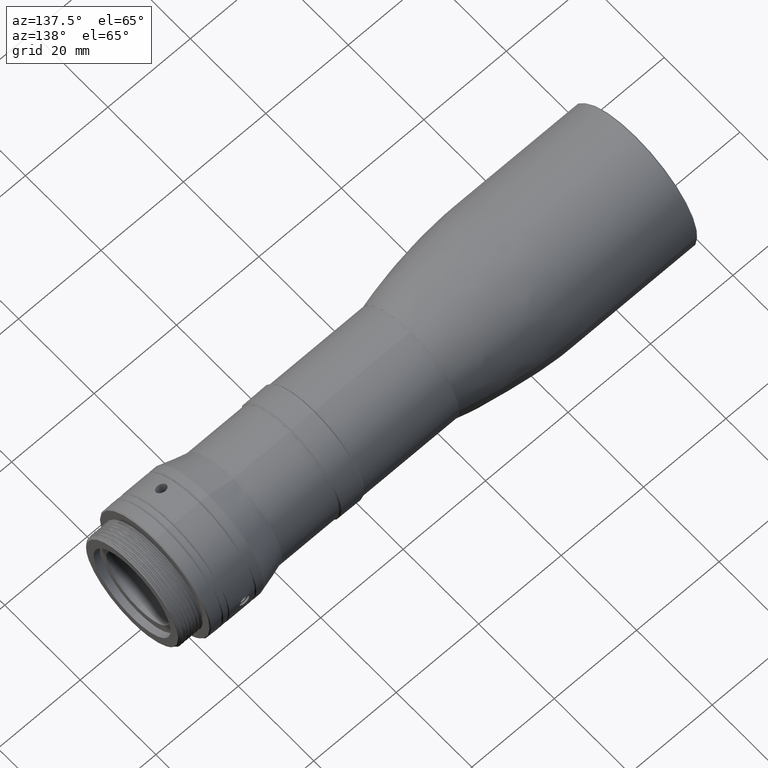
[diagram: clean part render]
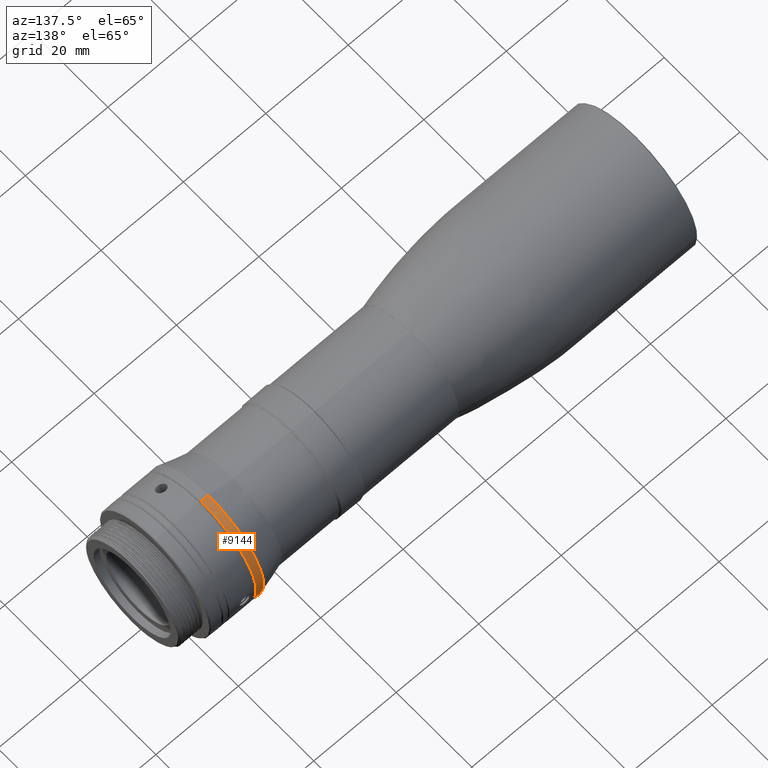
[diagram: same view with one face highlighted and labeled with its STEP entity id]
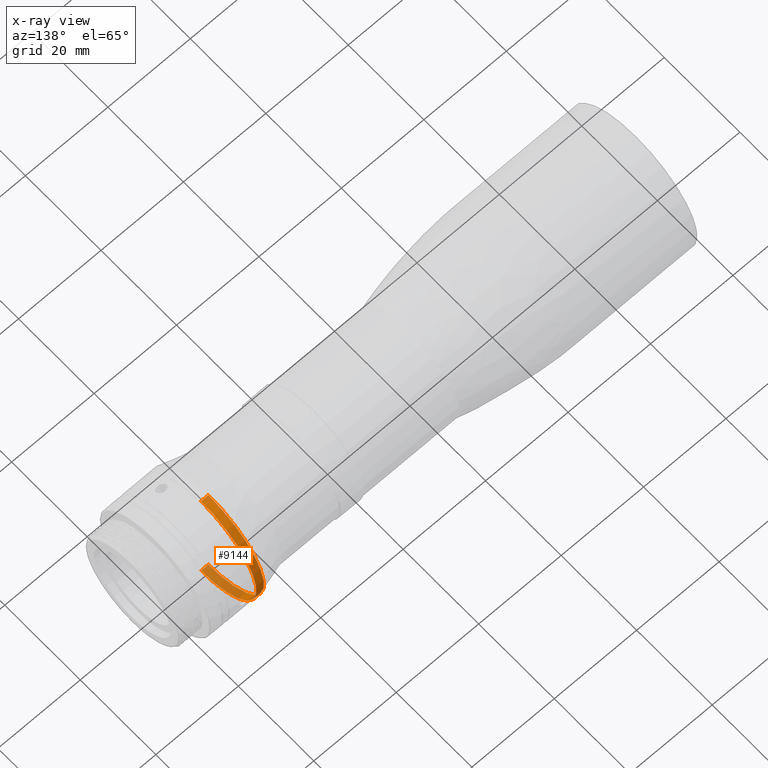
[diagram: x-ray of the same camera — body ghosted, the highlighted face saturated]
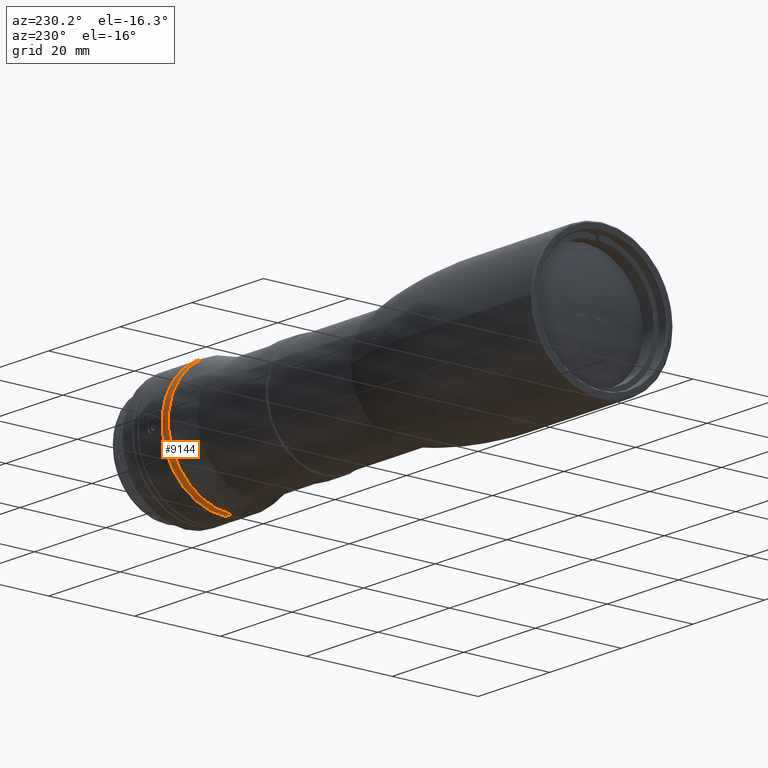
[diagram: same view with one face highlighted and labeled with its STEP entity id]
A machine part, auxiliary view. The second image highlights one B-rep face of the part: STEP entity #9144.
The next image is the same camera in x-ray: the body ghosted, the highlighted face saturated — about 28% of this face is hidden behind the body in this view.
A second angle (auxiliary view) of the same face is appended — the face is thin or edge-on in the first view.
In plain terms, the highlighted cylindrical surface (partial cylindrical patch) has radius 14.7 mm, axis along (1, -0, 0).
Its self-contained STEP definition (entity closure, byte-faithful):
#1486 = CIRCLE ( 'NONE', #12425, 14.69999999999999751 ) ;
#1654 = AXIS2_PLACEMENT_3D ( 'NONE', #10778, #10871, #11044 ) ;
#2222 = ORIENTED_EDGE ( 'NONE', *, *, #3312, .T. ) ;
#2542 = CIRCLE ( 'NONE', #1654, 14.69999999999999929 ) ;
#2702 = ORIENTED_EDGE ( 'NONE', *, *, #4090, .F. ) ;
#2806 = DIRECTION ( 'NONE',  ( 1.000000000000000000, -0.000000000000000000, 0.000000000000000000 ) ) ;
#3312 = EDGE_CURVE ( 'NONE', #17766, #17883, #1486, .T. ) ;
#4090 = EDGE_CURVE ( 'NONE', #17766, #6686, #14295, .T. ) ;
#4427 = DIRECTION ( 'NONE',  ( 1.000000000000000000, -0.000000000000000000, 0.000000000000000000 ) ) ;
#4555 = DIRECTION ( 'NONE',  ( 0.000000000000000000, -1.000000000000000000, 0.000000000000000000 ) ) ;
#5842 = EDGE_CURVE ( 'NONE', #17883, #7492, #15552, .T. ) ;
#6686 = VERTEX_POINT ( 'NONE', #6708 ) ;
#6708 = CARTESIAN_POINT ( 'NONE',  ( 50.71800032447000461, -1.891581034912395318E-13, -14.69999999999999751 ) ) ;
#7087 = CARTESIAN_POINT ( 'NONE',  ( 48.91800000000000637, 0.000000000000000000, -14.69999999999999929 ) ) ;
#7492 = VERTEX_POINT ( 'NONE', #13656 ) ;
#7861 = VECTOR ( 'NONE', #4427, 1000.000000000000000 ) ;
#8322 = AXIS2_PLACEMENT_3D ( 'NONE', #10924, #15376, #9605 ) ;
#8407 = ORIENTED_EDGE ( 'NONE', *, *, #5842, .T. ) ;
#9144 = ADVANCED_FACE ( 'NONE', ( #11109 ), #15463, .T. ) ;
#9605 = DIRECTION ( 'NONE',  ( 0.000000000000000000, 0.000000000000000000, -1.000000000000000000 ) ) ;
#9874 = CARTESIAN_POINT ( 'NONE',  ( 48.91800000000000637, 1.800230794746609123E-15, 14.69999999999999929 ) ) ;
#10236 = ORIENTED_EDGE ( 'NONE', *, *, #16672, .F. ) ;
#10778 = CARTESIAN_POINT ( 'NONE',  ( 50.71800032447000461, 0.000000000000000000, 0.000000000000000000 ) ) ;
#10871 = DIRECTION ( 'NONE',  ( 1.000000000000000000, 0.000000000000000000, 0.000000000000000000 ) ) ;
#10924 = CARTESIAN_POINT ( 'NONE',  ( 48.91800000000000637, 0.000000000000000000, 0.000000000000000000 ) ) ;
#11044 = DIRECTION ( 'NONE',  ( 0.000000000000000000, -1.000000000000000000, 0.000000000000000000 ) ) ;
#11109 = FACE_OUTER_BOUND ( 'NONE', #11743, .T. ) ;
#11743 = EDGE_LOOP ( 'NONE', ( #2222, #8407, #10236, #2702 ) ) ;
#12061 = DIRECTION ( 'NONE',  ( 1.000000000000000000, 0.000000000000000000, 0.000000000000000000 ) ) ;
#12425 = AXIS2_PLACEMENT_3D ( 'NONE', #14623, #12061, #4555 ) ;
#13656 = CARTESIAN_POINT ( 'NONE',  ( 50.71800032447000461, -1.909583342859875092E-13, 14.69999999999999929 ) ) ;
#14295 = LINE ( 'NONE', #7087, #7861 ) ;
#14346 = CARTESIAN_POINT ( 'NONE',  ( 48.91800000000000637, 1.800230794746609123E-15, 14.69999999999999751 ) ) ;
#14623 = CARTESIAN_POINT ( 'NONE',  ( 48.91800000000000637, 0.000000000000000000, 0.000000000000000000 ) ) ;
#14705 = VECTOR ( 'NONE', #2806, 1000.000000000000000 ) ;
#15376 = DIRECTION ( 'NONE',  ( 1.000000000000000000, -0.000000000000000000, 0.000000000000000000 ) ) ;
#15417 = CARTESIAN_POINT ( 'NONE',  ( 48.91800000000000637, 0.000000000000000000, -14.69999999999999751 ) ) ;
#15463 = CYLINDRICAL_SURFACE ( 'NONE', #8322, 14.69999999999999929 ) ;
#15552 = LINE ( 'NONE', #9874, #14705 ) ;
#16672 = EDGE_CURVE ( 'NONE', #6686, #7492, #2542, .T. ) ;
#17766 = VERTEX_POINT ( 'NONE', #15417 ) ;
#17883 = VERTEX_POINT ( 'NONE', #14346 ) ;